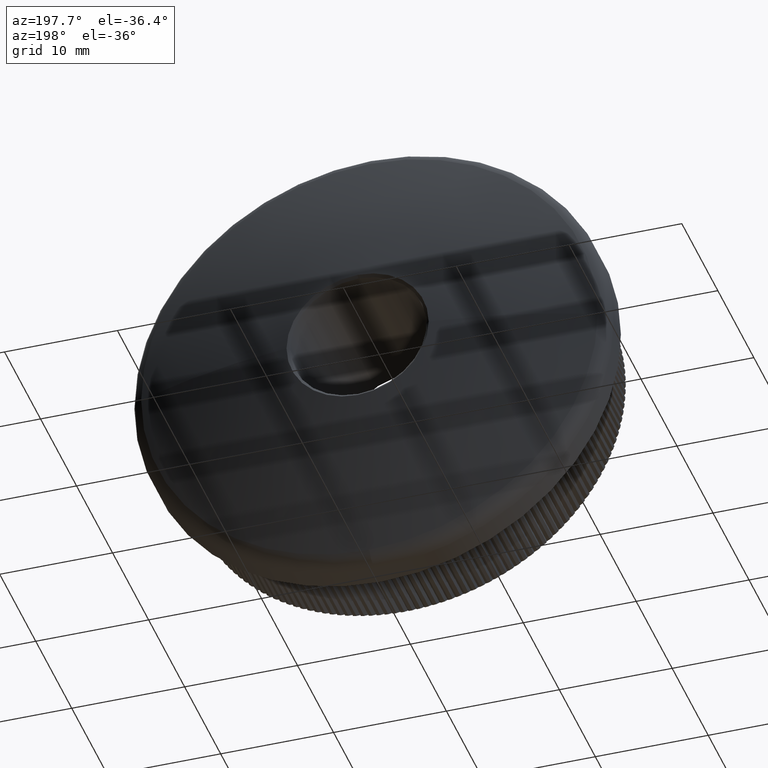
[diagram: clean part render]
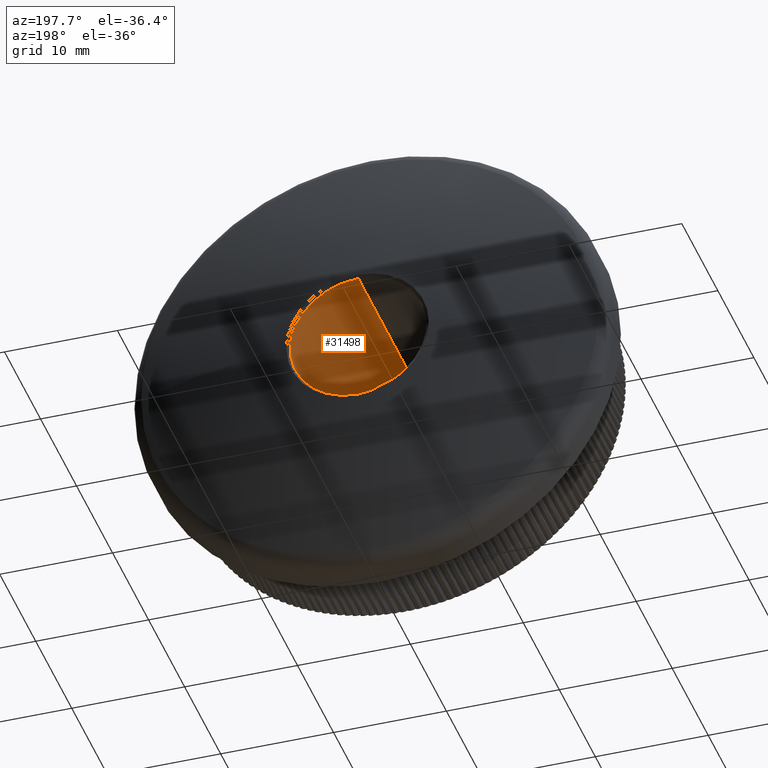
[diagram: same view with one face highlighted and labeled with its STEP entity id]
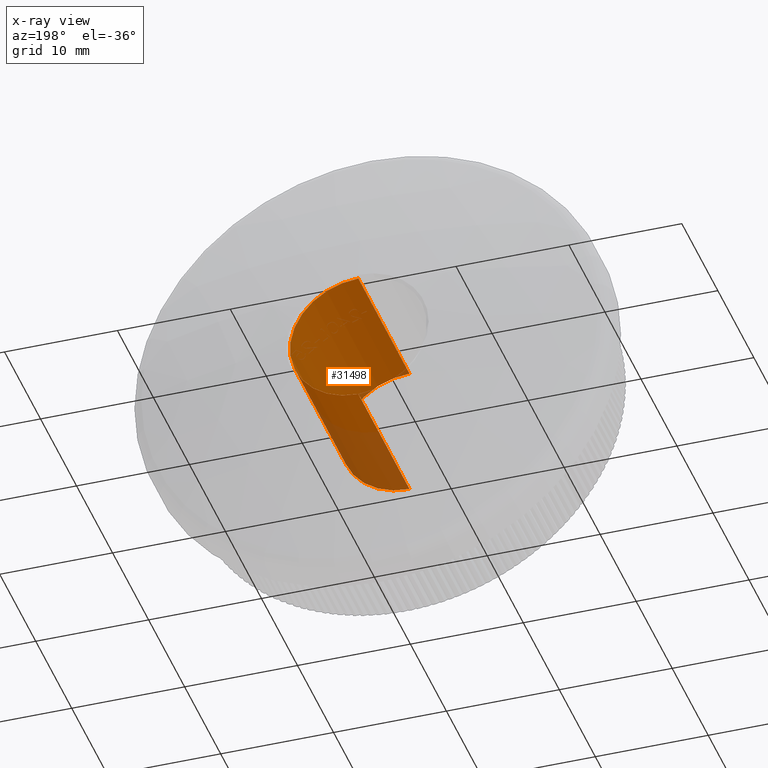
[diagram: x-ray of the same camera — body ghosted, the highlighted face saturated]
A machine part, auxiliary view. The second image highlights one B-rep face of the part: STEP entity #31498.
The next image is the same camera in x-ray: the body ghosted, the highlighted face saturated — about 22% of this face is hidden behind the body in this view.
In plain terms, the highlighted cylindrical surface (partial cylindrical patch) has radius 6.05 mm, axis along (-0, -1, -0).
Its self-contained STEP definition (entity closure, byte-faithful):
#351 = CARTESIAN_POINT ( 'NONE',  ( 0.0000000000000000000, 15.00000000000000000, 0.0000000000000000000 ) ) ;
#1119 = VECTOR ( 'NONE', #6928, 1000.000000000000000 ) ;
#2160 = VECTOR ( 'NONE', #16612, 1000.000000000000000 ) ;
#3635 = CARTESIAN_POINT ( 'NONE',  ( 0.0000000000000000000, 0.2499999999999932800, 0.0000000000000000000 ) ) ;
#3666 = ORIENTED_EDGE ( 'NONE', *, *, #16844, .T. ) ;
#3713 = LINE ( 'NONE', #21495, #2160 ) ;
#5172 = DIRECTION ( 'NONE',  ( 0.0000000000000000000, -1.000000000000000000, 0.0000000000000000000 ) ) ;
#6453 = DIRECTION ( 'NONE',  ( 0.0000000000000000000, 1.000000000000000000, 0.0000000000000000000 ) ) ;
#6687 = VERTEX_POINT ( 'NONE', #8775 ) ;
#6759 = VERTEX_POINT ( 'NONE', #23293 ) ;
#6928 = DIRECTION ( 'NONE',  ( -0.0000000000000000000, -1.000000000000000000, -0.0000000000000000000 ) ) ;
#7136 = CARTESIAN_POINT ( 'NONE',  ( 0.0000000000000000000, 14.45701308142265200, -6.049999999999999800 ) ) ;
#8464 = CARTESIAN_POINT ( 'NONE',  ( 0.0000000000000000000, 14.45701308142265200, 0.0000000000000000000 ) ) ;
#8775 = CARTESIAN_POINT ( 'NONE',  ( 7.409113134841486500E-016, 14.45701308142265200, 6.049999999999999800 ) ) ;
#10569 = DIRECTION ( 'NONE',  ( -0.0000000000000000000, -1.000000000000000000, -0.0000000000000000000 ) ) ;
#10987 = EDGE_CURVE ( 'NONE', #18182, #6759, #15635, .T. ) ;
#12724 = EDGE_CURVE ( 'NONE', #6687, #6759, #15243, .T. ) ;
#12732 = DIRECTION ( 'NONE',  ( 0.0000000000000000000, 0.0000000000000000000, -1.000000000000000000 ) ) ;
#13488 = CARTESIAN_POINT ( 'NONE',  ( 0.0000000000000000000, 0.2499999999999932800, -6.049999999999999800 ) ) ;
#13605 = ORIENTED_EDGE ( 'NONE', *, *, #12724, .F. ) ;
#13606 = ORIENTED_EDGE ( 'NONE', *, *, #10987, .T. ) ;
#14918 = AXIS2_PLACEMENT_3D ( 'NONE', #8464, #6453, #31634 ) ;
#15243 = LINE ( 'NONE', #24183, #1119 ) ;
#15635 = CIRCLE ( 'NONE', #27309, 6.049999999999999800 ) ;
#16612 = DIRECTION ( 'NONE',  ( -0.0000000000000000000, -1.000000000000000000, -0.0000000000000000000 ) ) ;
#16844 = EDGE_CURVE ( 'NONE', #32263, #18182, #3713, .T. ) ;
#17035 = CYLINDRICAL_SURFACE ( 'NONE', #29296, 6.049999999999999800 ) ;
#18182 = VERTEX_POINT ( 'NONE', #13488 ) ;
#20680 = CIRCLE ( 'NONE', #14918, 6.049999999999999800 ) ;
#21495 = CARTESIAN_POINT ( 'NONE',  ( 0.0000000000000000000, 15.00000000000000000, -6.049999999999999800 ) ) ;
#23293 = CARTESIAN_POINT ( 'NONE',  ( 7.409113134841486500E-016, 0.2499999999999932800, 6.049999999999999800 ) ) ;
#24183 = CARTESIAN_POINT ( 'NONE',  ( 7.409113134841486500E-016, 15.00000000000000000, 6.049999999999999800 ) ) ;
#24229 = EDGE_LOOP ( 'NONE', ( #13605, #30527, #3666, #13606 ) ) ;
#27309 = AXIS2_PLACEMENT_3D ( 'NONE', #3635, #5172, #12732 ) ;
#28047 = DIRECTION ( 'NONE',  ( 0.0000000000000000000, 0.0000000000000000000, -1.000000000000000000 ) ) ;
#28485 = EDGE_CURVE ( 'NONE', #6687, #32263, #20680, .T. ) ;
#29296 = AXIS2_PLACEMENT_3D ( 'NONE', #351, #10569, #28047 ) ;
#29484 = FACE_OUTER_BOUND ( 'NONE', #24229, .T. ) ;
#30527 = ORIENTED_EDGE ( 'NONE', *, *, #28485, .T. ) ;
#31498 = ADVANCED_FACE ( 'NONE', ( #29484 ), #17035, .F. ) ;
#31634 = DIRECTION ( 'NONE',  ( 0.0000000000000000000, 0.0000000000000000000, 1.000000000000000000 ) ) ;
#32263 = VERTEX_POINT ( 'NONE', #7136 ) ;